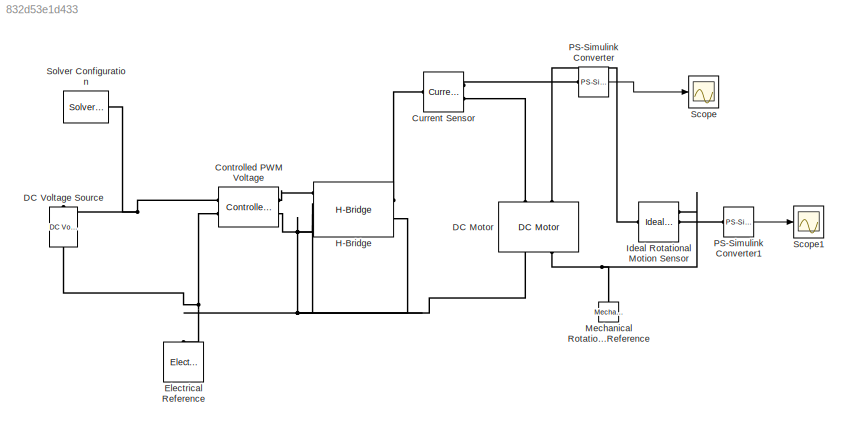
MODEL slx_832d53e1d433
KIND model
BLOCK [Reference] Controlled PWM Voltage  REF=elec_lib/Actuators & Drivers/Drivers/Controlled PWM
Voltage
  ClassName = controlled_pwm
  ComponentPath = elec.actuators.drivers.controlled_pwm
  ComponentVariantNames = controlled_pwm
  ComponentVariants = elec.actuators.drivers.controlled_pwm
  F = 4000
  F_unit = Hz
  Ports = [0, 0, 0, 0, 0, 2, 2]
  SchemaVersion = 1
  SourceBlock = elec_lib/Actuators & Drivers/Drivers/Controlled PWM\nVoltage
  SourceFile = elec.actuators.drivers.controlled_pwm
  SourceType = Controlled PWM\nVoltage
  TD = 0
  TD_unit = s
  Vm = 5
  Vm_unit = V
  Vmax = 5
  Vmax_unit = V
  Vmin = 0
  Vmin_unit = V
  event_type = 1
  event_type_unit = 1
  pulse_width_offset = 0
  pulse_width_offset_unit = s
  pwm_or_av = 2
  pwm_or_av_unit = 1
  sample_time = 1e-6
  sample_time_unit = s
BLOCK [Reference] Current Sensor  REF=fl_lib/Electrical/Electrical Sensors/Current Sensor
  ClassName = current
  ComponentPath = foundation.electrical.sensors.current
  ComponentVariantNames = current
  ComponentVariants = foundation.electrical.sensors.current
  Ports = [0, 0, 0, 0, 0, 1, 2]
  SchemaVersion = 1
  SourceBlock = fl_lib/Electrical/Electrical Sensors/Current Sensor
  SourceFile = foundation.electrical.sensors.current
  SourceType = Current Sensor
BLOCK [Reference] DC Motor  REF=elec_lib/Actuators & Drivers/Rotational Actuators/DC Motor
  ClassName = Simscape variant
  ComponentPath = elec.actuators.rotational.dc_motor
  ComponentVariantNames = No thermal port, Show thermal port
  ComponentVariants = elec.actuators.rotational.dc_motor, elec.actuators.rotational.dc_motor_thermal
  J = 2000
  J_unit = g*cm^2
  Ki = 6.876e-4
  Ki_unit = N*m/A
  Kv = 7.2e-5
  Kv_unit = V/rpm
  La = 0.01
  La_unit = H
  P_rated = 10
  P_rated_unit = W
  Ports = [0, 0, 0, 0, 0, 2, 2]
  Ra = 3.9
  Ra_unit = Ohm
  SchemaVersion = 1
  SourceBlock = elec_lib/Actuators & Drivers/Rotational Actuators/DC Motor
  SourceFile = elec.actuators.rotational.dc_motor
  SourceType = DC Motor
  T_stall = 2.4e-4
  T_stall_unit = N*m
  Tmeas = 25
  Tmeas_unit = C
  V_i_noload = 1.5
  V_i_noload_unit = V
  V_rated = 12
  V_rated_unit = V
  alpha = 0.00393
  alpha_unit = 1/K
  emf_or_torque = 1
  emf_or_torque_unit = 1
  i_noload = 0
  i_noload_unit = A
  initial_temperature = 25
  initial_temperature_unit = C
  lam = 1e-06
  lam_param = 1
  lam_param_unit = 1
  lam_unit = N*m/(rad/s)
  parameterization = 3
  parameterization_unit = 1
  speed0 = 0
  speed0_unit = rpm
  thermal_mass = 100
  thermal_mass_unit = J/K
  w_max = 4000
  w_max_unit = rpm
  w_rated = 2500
  w_rated_unit = rpm
BLOCK [Reference] DC Voltage Source  REF=fl_lib/Electrical/Electrical Sources/DC Voltage Source
  ClassName = dc_voltage
  ComponentPath = foundation.electrical.sources.dc_voltage
  ComponentVariantNames = dc_voltage
  ComponentVariants = foundation.electrical.sources.dc_voltage
  Ports = [0, 0, 0, 0, 0, 1, 1]
  SchemaVersion = 1
  SourceBlock = fl_lib/Electrical/Electrical Sources/DC Voltage Source
  SourceFile = foundation.electrical.sources.dc_voltage
  SourceType = DC Voltage Source
  v0 = 2.5
  v0_unit = V
BLOCK [Reference] Electrical Reference  REF=fl_lib/Electrical/Electrical Elements/Electrical Reference
  ClassName = reference
  ComponentPath = foundation.electrical.elements.reference
  ComponentVariantNames = reference
  ComponentVariants = foundation.electrical.elements.reference
  Ports = [0, 0, 0, 0, 0, 1]
  SchemaVersion = 1
  SourceBlock = fl_lib/Electrical/Electrical Elements/Electrical Reference
  SourceFile = foundation.electrical.elements.reference
  SourceType = Electrical Reference
BLOCK [Reference] H-Bridge  REF=elec_lib/Actuators & Drivers/Drivers/H-Bridge
  ClassName = h_bridge
  ComponentPath = elec.actuators.drivers.h_bridge
  ComponentVariantNames = h_bridge
  ComponentVariants = elec.actuators.drivers.h_bridge
  Don = 0.05
  Don_unit = Ohm
  F = 10
  F_unit = kHz
  Lload = 1e-5
  Lload_unit = H
  Ports = [0, 0, 0, 0, 0, 4, 2]
  Rload = 10
  Rload_unit = Ohm
  Ron = 0.1
  Ron_unit = Ohm
  SchemaVersion = 1
  SourceBlock = elec_lib/Actuators & Drivers/Drivers/H-Bridge
  SourceFile = elec.actuators.drivers.h_bridge
  SourceType = H-Bridge
  Vbrake = 2.5
  Vbrake_unit = V
  Venable = 2.5
  Venable_unit = V
  Vm = 12
  Vm_unit = V
  Vmax = 5.0
  Vmax_unit = V
  Vreverse = 2.5
  Vreverse_unit = V
  discontinuous = 0
  discontinuous_unit = 1
  freewheeling_mode = 1
  freewheeling_mode_disc = 1
  freewheeling_mode_disc_unit = 1
  freewheeling_mode_unit = 1
  i_vec = [1, 2]
  i_vec_unit = A
  pwm_or_av = 2
  pwm_or_av_unit = 1
  vMatrix = [1, 2; 3, 4]
  vMatrix_unit = V
  w_vec = [1, 2]
  w_vec_unit = s
BLOCK [Reference] Ideal Rotational Motion Sensor  REF=fl_lib/Mechanical/Mechanical Sensors/Ideal Rotational
Motion Sensor
  ClassName = angular_velocity
  ComponentPath = foundation.mechanical.sensors.angular_velocity
  ComponentVariantNames = angular_velocity
  ComponentVariants = foundation.mechanical.sensors.angular_velocity
  Ports = [0, 0, 0, 0, 0, 1, 3]
  SchemaVersion = 1
  SourceBlock = fl_lib/Mechanical/Mechanical Sensors/Ideal Rotational\nMotion Sensor
  SourceFile = foundation.mechanical.sensors.angular_velocity
  SourceType = Ideal Rotational\nMotion Sensor
  offset = 0
  offset_unit = rad
BLOCK [Reference] Mechanical Rotational Reference  REF=fl_lib/Mechanical/Rotational Elements/Mechanical
Rotational Reference
  ClassName = reference
  ComponentPath = foundation.mechanical.rotational.reference
  ComponentVariantNames = reference
  ComponentVariants = foundation.mechanical.rotational.reference
  Ports = [0, 0, 0, 0, 0, 1]
  SchemaVersion = 1
  SourceBlock = fl_lib/Mechanical/Rotational Elements/Mechanical\nRotational Reference
  SourceFile = foundation.mechanical.rotational.reference
  SourceType = Mechanical\nRotational Reference
BLOCK [Reference] PS-Simulink Converter  REF=nesl_utility/PS-Simulink
Converter
  AffineConversion = off
  Frequencies = []
  LeftPortType = input
  PhysicalDomain = network_engine_domain
  Ports = [0, 1, 0, 0, 0, 1]
  PseudoPeriodic = off
  RightPortType = output
  SourceBlock = nesl_utility/PS-Simulink\nConverter
  SourceType = PS-Simulink\nConverter
  SubClassName = ps_output
  Unit = 1
BLOCK [Reference] PS-Simulink Converter1  REF=nesl_utility/PS-Simulink
Converter
  AffineConversion = off
  Frequencies = []
  LeftPortType = input
  PhysicalDomain = network_engine_domain
  Ports = [0, 1, 0, 0, 0, 1]
  PseudoPeriodic = off
  RightPortType = output
  SourceBlock = nesl_utility/PS-Simulink\nConverter
  SourceType = PS-Simulink\nConverter
  SubClassName = ps_output
  Unit = 1
BLOCK [Scope] Scope
  Floating = off
  NumInputPorts = 1
  Ports = [1]
  ShowLegends = off
BLOCK [Scope] Scope1
  Floating = off
  NumInputPorts = 1
  Ports = [1]
  SaveName = ScopeData1
  ShowLegends = off
BLOCK [Reference] Solver Configuration  REF=nesl_utility/Solver
Configuration
  AbsTol = 1e-06
  Accelerate = off
  AutomaticFiltering = on
  DelaysMemoryBudget = 1024
  DoDC = off
  DoFixedCost = off
  EnableSwitchedLinearOptims = on
  FilteringTimeConstant = 0.001
  FrequencyDomain = off
  Harmonics = []
  LeftPortType = input
  LinearAlgebra = Sparse
  LocalSolverChoice = NE_BACKWARD_EULER_ADVANCER
  LocalSolverSampleTime = 0.001
  MaxModeIter = 2
  MaxNonlinIter = 3
  MinStep = 1e-09
  PhysicalDomain = network_engine_domain
  Ports = [0, 0, 0, 0, 0, 0, 1]
  Profile = off
  RelTol = 0.001
  ResidualTolerance = 1e-09
  RightPortType = generic
  SimulateNoise = off
  SourceBlock = nesl_utility/Solver\nConfiguration
  SourceType = Solver\nConfiguration
  SubClassName = solver
  ToWorkspace = off
  Tones = []
  UseCCode = off
  UseLocalSampling = off
  UseLocalSolver = off
LINE PS-Simulink Converter1:1 -> Scope1:1
LINE PS-Simulink Converter:1 -> Scope:1
PNET net1: Controlled PWM Voltage:LConn1 -- DC Voltage Source:LConn1 -- Solver Configuration:RConn1
PNET net2: Controlled PWM Voltage:LConn2 -- Controlled PWM Voltage:RConn2 -- DC Motor:RConn1 -- DC Voltage Source:RConn1 -- Electrical Reference:LConn1 -- H-Bridge:LConn2 -- H-Bridge:LConn3 -- H-Bridge:LConn4 -- H-Bridge:RConn2
PLINE Controlled PWM Voltage:RConn1 -- H-Bridge:LConn1
PLINE Current Sensor:LConn1 -- H-Bridge:RConn1
PLINE Current Sensor:RConn1 -- PS-Simulink Converter:LConn1
PLINE Current Sensor:RConn2 -- DC Motor:LConn1
PLINE DC Motor:LConn2 -- Ideal Rotational Motion Sensor:LConn1
PNET net3: DC Motor:RConn2 -- Ideal Rotational Motion Sensor:RConn1 -- Mechanical Rotational Reference:LConn1
PLINE Ideal Rotational Motion Sensor:RConn2 -- PS-Simulink Converter1:LConn1
note: PNET lines group multi-terminal physical nets as a canonical sorted terminal list (undirected conserving connections); 2-terminal nets keep the pairwise PLINE form
